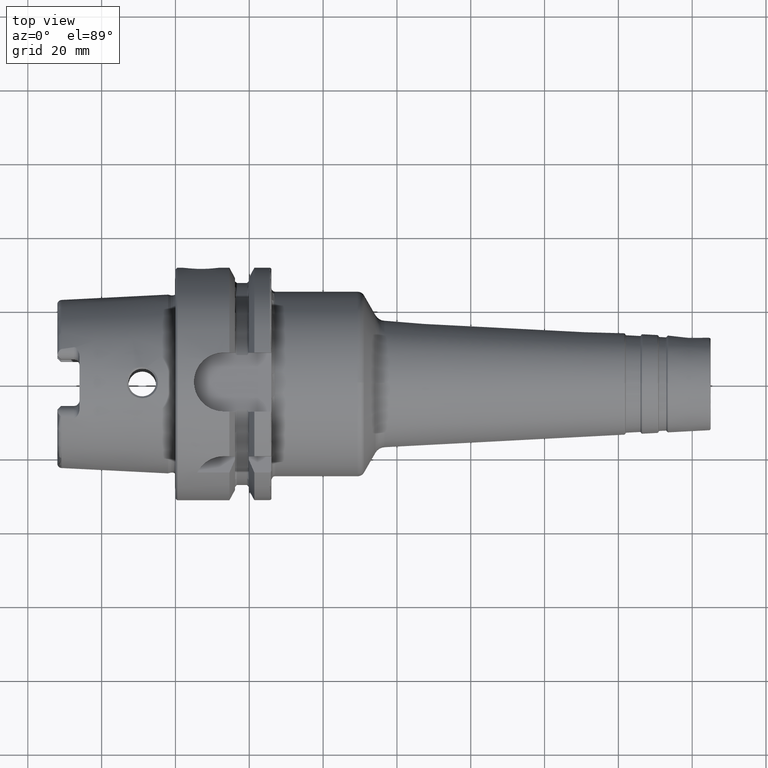
[diagram: clean part render]
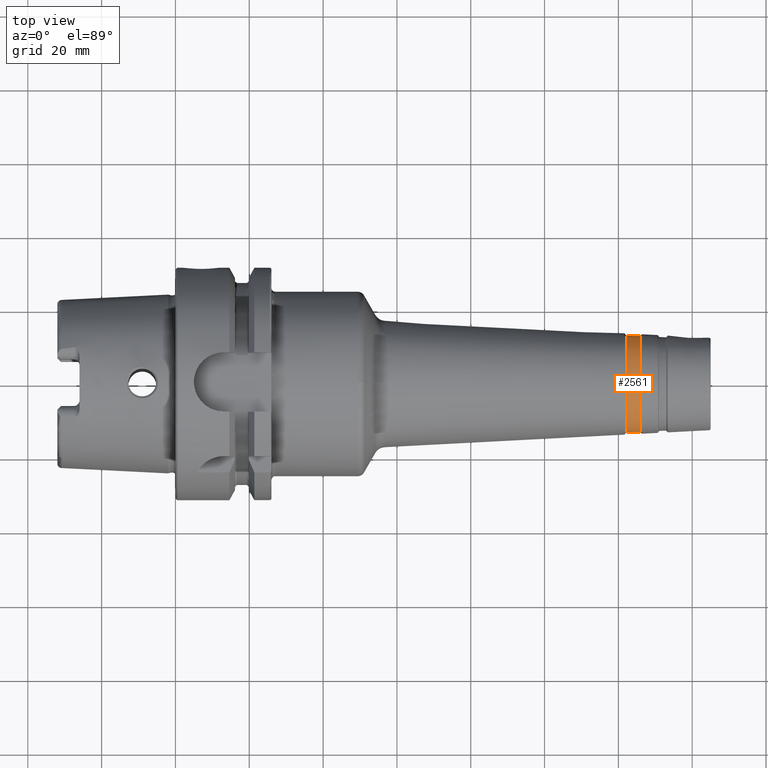
[diagram: same view with one face highlighted and labeled with its STEP entity id]
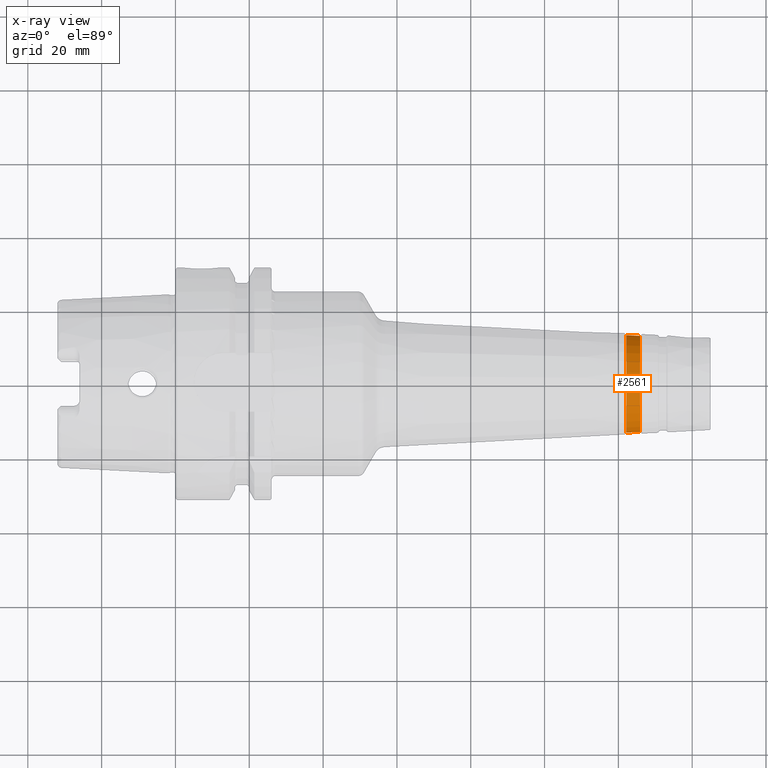
[diagram: x-ray of the same camera — body ghosted, the highlighted face saturated]
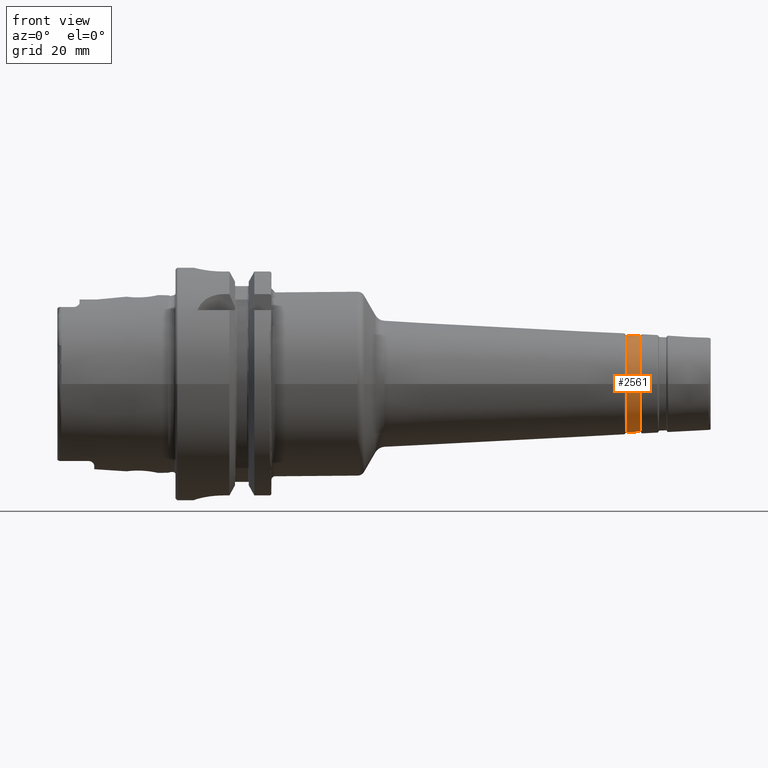
[diagram: same view with one face highlighted and labeled with its STEP entity id]
A machine part, top view. The second image highlights one B-rep face of the part: STEP entity #2561.
The next image is the same camera in x-ray: the body ghosted, the highlighted face saturated — about 0% of this face is hidden behind the body in this view.
A second angle (front view) of the same face is appended — the face is thin or edge-on in the first view.
In plain terms, the highlighted conical surface has half-angle 3 deg.
Its self-contained STEP definition (entity closure, byte-faithful):
#102=CONICAL_SURFACE('',#2770,13.099230784584,0.0523598775598297);
#188=LINE('',#4065,#305);
#305=VECTOR('',#3222,13.099230784584);
#455=FACE_OUTER_BOUND('',#592,.T.);
#592=EDGE_LOOP('',(#1776,#1777,#1778,#1779,#1780,#1781,#1782,#1783));
#771=CIRCLE('',#2763,13.0006021077832);
#776=CIRCLE('',#2768,13.0006021077832);
#777=CIRCLE('',#2769,13.0006021077832);
#778=CIRCLE('',#2771,13.1978594613849);
#779=CIRCLE('',#2772,13.1978594613849);
#780=CIRCLE('',#2773,13.1978594613849);
#1000=VERTEX_POINT('',#4050);
#1001=VERTEX_POINT('',#4051);
#1005=VERTEX_POINT('',#4060);
#1006=VERTEX_POINT('',#4064);
#1007=VERTEX_POINT('',#4066);
#1008=VERTEX_POINT('',#4068);
#1305=EDGE_CURVE('',#1000,#1001,#771,.T.);
#1310=EDGE_CURVE('',#1001,#1005,#776,.T.);
#1311=EDGE_CURVE('',#1005,#1000,#777,.T.);
#1312=EDGE_CURVE('',#1005,#1006,#188,.T.);
#1313=EDGE_CURVE('',#1007,#1006,#778,.T.);
#1314=EDGE_CURVE('',#1008,#1007,#779,.T.);
#1315=EDGE_CURVE('',#1006,#1008,#780,.T.);
#1776=ORIENTED_EDGE('',*,*,#1305,.F.);
#1777=ORIENTED_EDGE('',*,*,#1311,.F.);
#1778=ORIENTED_EDGE('',*,*,#1312,.T.);
#1779=ORIENTED_EDGE('',*,*,#1313,.F.);
#1780=ORIENTED_EDGE('',*,*,#1314,.F.);
#1781=ORIENTED_EDGE('',*,*,#1315,.F.);
#1782=ORIENTED_EDGE('',*,*,#1312,.F.);
#1783=ORIENTED_EDGE('',*,*,#1310,.F.);
#2561=ADVANCED_FACE('',(#455),#102,.T.);
#2763=AXIS2_PLACEMENT_3D('',#4052,#3206,#3207);
#2768=AXIS2_PLACEMENT_3D('',#4061,#3216,#3217);
#2769=AXIS2_PLACEMENT_3D('',#4062,#3218,#3219);
#2770=AXIS2_PLACEMENT_3D('',#4063,#3220,#3221);
#2771=AXIS2_PLACEMENT_3D('',#4067,#3223,#3224);
#2772=AXIS2_PLACEMENT_3D('',#4069,#3225,#3226);
#2773=AXIS2_PLACEMENT_3D('',#4070,#3227,#3228);
#3206=DIRECTION('center_axis',(1.,0.,0.));
#3207=DIRECTION('ref_axis',(0.,-1.,3.06161699786838E-17));
#3216=DIRECTION('center_axis',(1.,0.,0.));
#3217=DIRECTION('ref_axis',(0.,-1.,3.06161699786838E-17));
#3218=DIRECTION('center_axis',(1.,0.,0.));
#3219=DIRECTION('ref_axis',(0.,-1.,3.06161699786838E-17));
#3220=DIRECTION('center_axis',(-1.,0.,0.));
#3221=DIRECTION('ref_axis',(0.,1.,0.));
#3222=DIRECTION('',(-0.998629534754574,-0.0523359562429436,-6.40930612932369E-18));
#3223=DIRECTION('center_axis',(-1.,0.,0.));
#3224=DIRECTION('ref_axis',(0.,-1.,3.06161699786838E-17));
#3225=DIRECTION('center_axis',(-1.,0.,0.));
#3226=DIRECTION('ref_axis',(0.,-1.,3.06161699786838E-17));
#3227=DIRECTION('center_axis',(-1.,0.,0.));
#3228=DIRECTION('ref_axis',(0.,-1.,3.06161699786838E-17));
#4050=CARTESIAN_POINT('',(125.894281450576,13.0006021077832,-7.96057287914249E-16));
#4051=CARTESIAN_POINT('',(125.894281450576,-1.5921145758285E-15,13.0006021077832));
#4052=CARTESIAN_POINT('Origin',(125.894281450576,0.,-1.99014321978562E-15));
#4060=CARTESIAN_POINT('',(125.894281450576,-13.0006021077832,-1.5921145758285E-15));
#4061=CARTESIAN_POINT('Origin',(125.894281450576,0.,-1.99014321978562E-15));
#4062=CARTESIAN_POINT('Origin',(125.894281450576,0.,-1.99014321978562E-15));
#4063=CARTESIAN_POINT('Origin',(124.012334187209,0.,0.));
#4064=CARTESIAN_POINT('',(122.130386923842,-13.1978594613849,-1.61627163449816E-15));
#4065=CARTESIAN_POINT('',(124.012334187209,-13.099230784584,-1.60419310516333E-15));
#4066=CARTESIAN_POINT('',(122.130386923842,13.1978594613849,-4.0406790862454E-15));
#4067=CARTESIAN_POINT('Origin',(122.130386923842,0.,-2.0203395431227E-15));
#4068=CARTESIAN_POINT('',(122.130386923842,-1.61627163449816E-15,13.1978594613849));
#4069=CARTESIAN_POINT('Origin',(122.130386923842,0.,-2.0203395431227E-15));
#4070=CARTESIAN_POINT('Origin',(122.130386923842,0.,-2.0203395431227E-15));